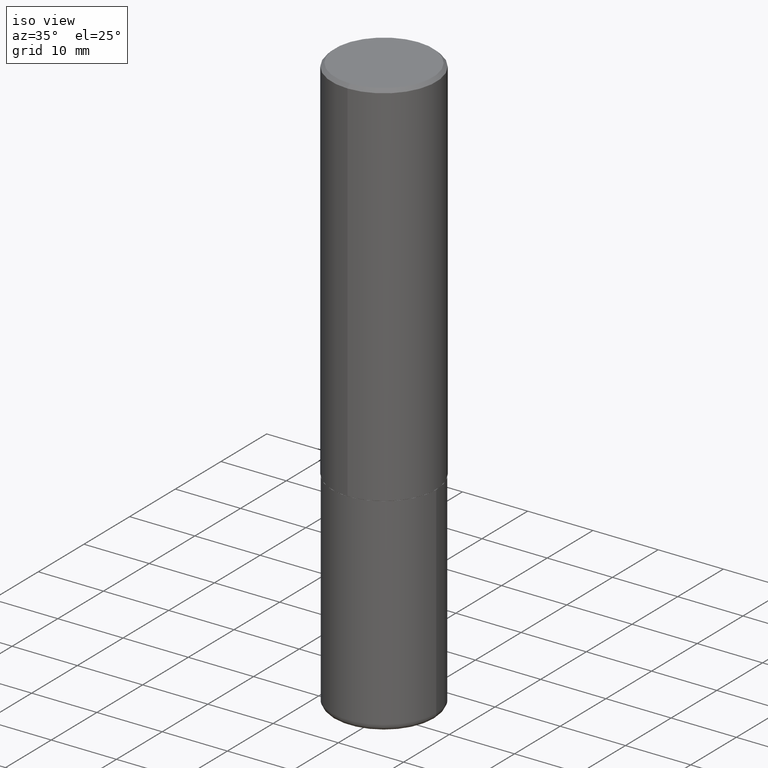
[diagram: clean part render]
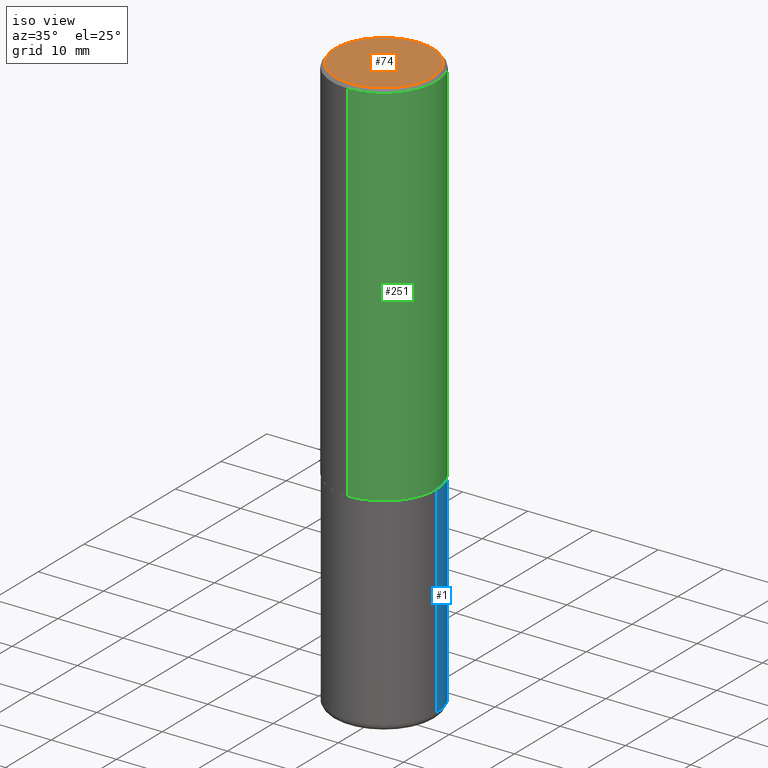
[diagram: same view with three faces highlighted in distinct colors, each labeled with its STEP entity id]
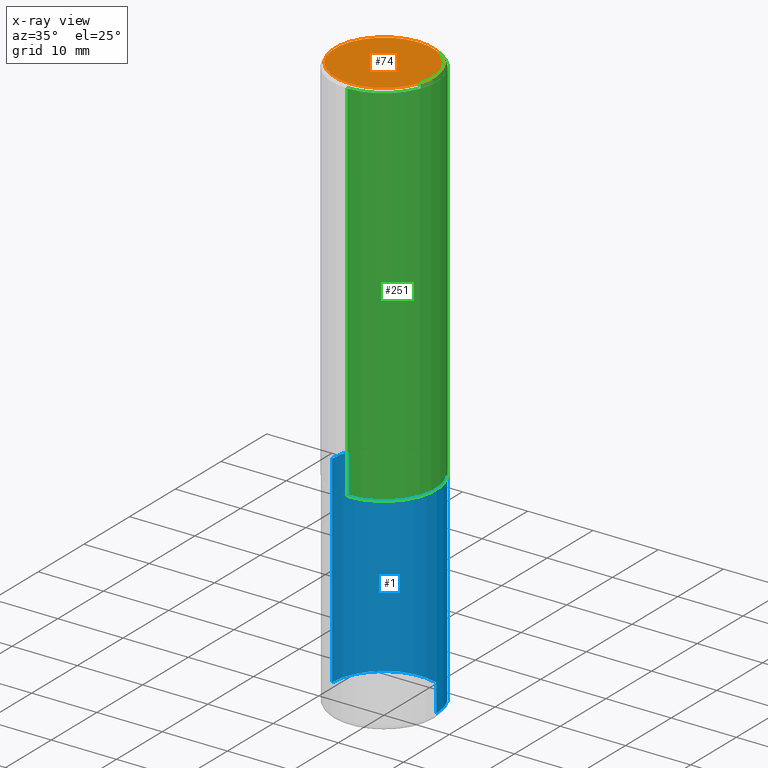
[diagram: x-ray of the same camera — body ghosted, the three highlighted faces saturated]
A machine part, iso view with three faces highlighted in distinct colors.
The next image is the same camera in x-ray (body ghosted, the three faces saturated) — at least one of them is partly hidden behind the body in this view.
Their STEP definitions:

[orange] entity #74 — the highlighted planar face has unit normal (0, -0, -1).
#5 = AXIS2_PLACEMENT_3D ( 'NONE', #55, #384, #23 ) ;
#21 = AXIS2_PLACEMENT_3D ( 'NONE', #409, #178, #242 ) ;
#23 = DIRECTION ( 'NONE',  ( -6.982962677686265922E-15, -1.000000000000000000, 3.490574506274840456E-15 ) ) ;
#30 = ORIENTED_EDGE ( 'NONE', *, *, #39, .T. ) ;
#39 = EDGE_CURVE ( 'NONE', #314, #397, #386, .T. ) ;
#55 = CARTESIAN_POINT ( 'NONE',  ( -6.780248536777034301E-45, 9.675378321561535985E-31, 2.771858415905051370E-16 ) ) ;
#74 = ADVANCED_FACE ( 'NONE', ( #81 ), #115, .F. ) ;
#81 = FACE_OUTER_BOUND ( 'NONE', #300, .T. ) ;
#85 = CIRCLE ( 'NONE', #5, 0.2949499999999996014 ) ;
#115 = PLANE ( 'NONE',  #21 ) ;
#178 = DIRECTION ( 'NONE',  ( 2.446102043983074868E-29, -3.490574506274840456E-15, -1.000000000000000000 ) ) ;
#183 = CARTESIAN_POINT ( 'NONE',  ( 2.129454468560424995E-15, 0.2949499999999996014, -7.523591090352575511E-16 ) ) ;
#187 = EDGE_CURVE ( 'NONE', #397, #314, #85, .T. ) ;
#207 = DIRECTION ( 'NONE',  ( -6.982962677686265922E-15, -1.000000000000000000, 3.490574506274840456E-15 ) ) ;
#213 = CARTESIAN_POINT ( 'NONE',  ( -6.780248536777034301E-45, 9.675378321561535985E-31, 2.771858415905051370E-16 ) ) ;
#242 = DIRECTION ( 'NONE',  ( 6.982962677686265922E-15, 1.000000000000000000, -3.490574506274840456E-15 ) ) ;
#275 = DIRECTION ( 'NONE',  ( -2.446102043983075148E-29, 3.490574506274840456E-15, 1.000000000000000000 ) ) ;
#296 = CARTESIAN_POINT ( 'NONE',  ( -2.092108864420426059E-15, -0.2949499999999996014, 1.306730792216267924E-15 ) ) ;
#300 = EDGE_LOOP ( 'NONE', ( #30, #415 ) ) ;
#314 = VERTEX_POINT ( 'NONE', #183 ) ;
#346 = AXIS2_PLACEMENT_3D ( 'NONE', #213, #275, #207 ) ;
#384 = DIRECTION ( 'NONE',  ( -2.446102043983075148E-29, 3.490574506274840456E-15, 1.000000000000000000 ) ) ;
#386 = CIRCLE ( 'NONE', #346, 0.2949499999999996014 ) ;
#397 = VERTEX_POINT ( 'NONE', #296 ) ;
#409 = CARTESIAN_POINT ( 'NONE',  ( 2.059624841783561302E-15, 0.2949499999999996014, -8.909520298305101196E-16 ) ) ;
#415 = ORIENTED_EDGE ( 'NONE', *, *, #187, .T. ) ;

[blue] entity #1 — the highlighted cylindrical surface (partial cylindrical patch) has radius 7.9997 mm, axis along (-0, 0, 1).
#1 = ADVANCED_FACE ( 'NONE', ( #273 ), #341, .T. ) ;
#2 = CARTESIAN_POINT ( 'NONE',  ( -0.3149500000000000077, -7.727880839183554507E-15, -2.244099999999999540 ) ) ;
#19 = EDGE_CURVE ( 'NONE', #197, #352, #405, .T. ) ;
#28 = EDGE_CURVE ( 'NONE', #244, #297, #83, .T. ) ;
#51 = DIRECTION ( 'NONE',  ( -2.445468806185136597E-29, 3.491481338843145583E-15, 1.000000000000000000 ) ) ;
#54 = AXIS2_PLACEMENT_3D ( 'NONE', #311, #188, #162 ) ;
#76 = DIRECTION ( 'NONE',  ( -2.445468806185136877E-29, 3.491481338843145188E-15, 1.000000000000000000 ) ) ;
#83 = LINE ( 'NONE', #145, #361 ) ;
#89 = CARTESIAN_POINT ( 'NONE',  ( -0.3149500000000000077, -9.858382752145642660E-15, -3.464500000000000135 ) ) ;
#100 = CARTESIAN_POINT ( 'NONE',  ( 0.3149500000000000077, -1.003451736783519063E-14, -2.244099999999999540 ) ) ;
#109 = AXIS2_PLACEMENT_3D ( 'NONE', #318, #417, #256 ) ;
#121 = ORIENTED_EDGE ( 'NONE', *, *, #19, .T. ) ;
#129 = ORIENTED_EDGE ( 'NONE', *, *, #182, .F. ) ;
#145 = CARTESIAN_POINT ( 'NONE',  ( 0.3149500000000000077, -2.199284095337289871E-15, 1.535751875536930130E-29 ) ) ;
#156 = VECTOR ( 'NONE', #398, 39.37007874015748143 ) ;
#162 = DIRECTION ( 'NONE',  ( 1.000000000000000000, -6.982962677686266711E-15, 0.000000000000000000 ) ) ;
#182 = EDGE_CURVE ( 'NONE', #297, #352, #247, .T. ) ;
#188 = DIRECTION ( 'NONE',  ( -2.445468806185136597E-29, 3.491481338843145583E-15, 1.000000000000000000 ) ) ;
#197 = VERTEX_POINT ( 'NONE', #89 ) ;
#198 = CIRCLE ( 'NONE', #109, 0.3149500000000000077 ) ;
#204 = AXIS2_PLACEMENT_3D ( 'NONE', #269, #51, #309 ) ;
#240 = EDGE_CURVE ( 'NONE', #244, #197, #198, .T. ) ;
#244 = VERTEX_POINT ( 'NONE', #253 ) ;
#247 = CIRCLE ( 'NONE', #54, 0.3149500000000000077 ) ;
#253 = CARTESIAN_POINT ( 'NONE',  ( 0.3149500000000000077, -1.429552119375937009E-14, -3.464500000000000135 ) ) ;
#256 = DIRECTION ( 'NONE',  ( 1.000000000000000000, -6.982962677686269866E-15, 0.000000000000000000 ) ) ;
#258 = ORIENTED_EDGE ( 'NONE', *, *, #28, .F. ) ;
#269 = CARTESIAN_POINT ( 'NONE',  ( 0.000000000000000000, 0.000000000000000000, 0.000000000000000000 ) ) ;
#273 = FACE_OUTER_BOUND ( 'NONE', #394, .T. ) ;
#297 = VERTEX_POINT ( 'NONE', #100 ) ;
#309 = DIRECTION ( 'NONE',  ( 1.000000000000000000, -6.982962677686266711E-15, 4.876176775795936353E-29 ) ) ;
#311 = CARTESIAN_POINT ( 'NONE',  ( 5.487876547960064752E-29, -7.835233272497900762E-15, -2.244099999999999540 ) ) ;
#318 = CARTESIAN_POINT ( 'NONE',  ( 8.472326679028406000E-29, -1.209623709842207864E-14, -3.464500000000000135 ) ) ;
#341 = CYLINDRICAL_SURFACE ( 'NONE', #204, 0.3149500000000000077 ) ;
#345 = ORIENTED_EDGE ( 'NONE', *, *, #240, .T. ) ;
#352 = VERTEX_POINT ( 'NONE', #2 ) ;
#361 = VECTOR ( 'NONE', #76, 39.37007874015748143 ) ;
#373 = CARTESIAN_POINT ( 'NONE',  ( -0.3149500000000000077, 2.237854346276435590E-15, -1.549218606675782676E-29 ) ) ;
#394 = EDGE_LOOP ( 'NONE', ( #345, #121, #129, #258 ) ) ;
#398 = DIRECTION ( 'NONE',  ( -2.445468806185136877E-29, 3.491481338843145188E-15, 1.000000000000000000 ) ) ;
#405 = LINE ( 'NONE', #373, #156 ) ;
#417 = DIRECTION ( 'NONE',  ( -2.445468806185136597E-29, 3.491481338843145583E-15, 1.000000000000000000 ) ) ;

[green] entity #251 — the highlighted cylindrical surface (partial cylindrical patch) has radius 7.9997 mm, axis along (-0, 0, 1).
#3 = DIRECTION ( 'NONE',  ( -6.982962677686264344E-15, -1.000000000000000000, 3.496670018878890283E-15 ) ) ;
#24 = CARTESIAN_POINT ( 'NONE',  ( 0.000000000000000000, 0.000000000000000000, 0.000000000000000000 ) ) ;
#32 = DIRECTION ( 'NONE',  ( -2.446102043983075148E-29, 3.490574506274840456E-15, 1.000000000000000000 ) ) ;
#52 = CARTESIAN_POINT ( 'NONE',  ( -2.160713844398142179E-15, -0.3149499999999999522, -0.01999999999999896652 ) ) ;
#57 = CARTESIAN_POINT ( 'NONE',  ( 2.237854346276435590E-15, 0.3149500000000000632, -1.099356440751261260E-15 ) ) ;
#61 = AXIS2_PLACEMENT_3D ( 'NONE', #124, #92, #382 ) ;
#92 = DIRECTION ( 'NONE',  ( -2.446102043983075148E-29, 3.490574506274840456E-15, 1.000000000000000000 ) ) ;
#97 = VERTEX_POINT ( 'NONE', #371 ) ;
#108 = CARTESIAN_POINT ( 'NONE',  ( 4.892204087966167602E-31, -6.981149012549705614E-17, -0.02000000000000006981 ) ) ;
#110 = ORIENTED_EDGE ( 'NONE', *, *, #173, .T. ) ;
#124 = CARTESIAN_POINT ( 'NONE',  ( 5.486851494858434265E-29, -7.829707675025093274E-15, -2.243099999999999206 ) ) ;
#128 = CARTESIAN_POINT ( 'NONE',  ( 2.199284095337288688E-15, 0.3149499999999997857, -0.02000000000000116962 ) ) ;
#155 = DIRECTION ( 'NONE',  ( -2.446102043983075148E-29, 3.490574506274840456E-15, 1.000000000000000000 ) ) ;
#173 = EDGE_CURVE ( 'NONE', #360, #272, #268, .T. ) ;
#176 = EDGE_CURVE ( 'NONE', #97, #360, #230, .T. ) ;
#184 = DIRECTION ( 'NONE',  ( -2.446102043983075148E-29, 3.490574506274840456E-15, 1.000000000000000000 ) ) ;
#217 = LINE ( 'NONE', #377, #255 ) ;
#230 = CIRCLE ( 'NONE', #61, 0.3149500000000002853 ) ;
#250 = CYLINDRICAL_SURFACE ( 'NONE', #349, 0.3149500000000000632 ) ;
#251 = ADVANCED_FACE ( 'NONE', ( #383 ), #250, .T. ) ;
#255 = VECTOR ( 'NONE', #184, 39.37007874015748143 ) ;
#268 = LINE ( 'NONE', #57, #380 ) ;
#272 = VERTEX_POINT ( 'NONE', #128 ) ;
#277 = DIRECTION ( 'NONE',  ( -6.982962677686265922E-15, -1.000000000000000000, 3.490574506274840456E-15 ) ) ;
#285 = VERTEX_POINT ( 'NONE', #52 ) ;
#287 = EDGE_CURVE ( 'NONE', #97, #285, #217, .T. ) ;
#289 = ORIENTED_EDGE ( 'NONE', *, *, #315, .F. ) ;
#294 = EDGE_LOOP ( 'NONE', ( #406, #110, #289, #319 ) ) ;
#315 = EDGE_CURVE ( 'NONE', #285, #272, #401, .T. ) ;
#319 = ORIENTED_EDGE ( 'NONE', *, *, #287, .F. ) ;
#349 = AXIS2_PLACEMENT_3D ( 'NONE', #24, #379, #277 ) ;
#360 = VERTEX_POINT ( 'NONE', #385 ) ;
#371 = CARTESIAN_POINT ( 'NONE',  ( -2.199284095337236228E-15, -0.3149500000000081124, -2.243099999999998317 ) ) ;
#377 = CARTESIAN_POINT ( 'NONE',  ( -2.199284095337289871E-15, -0.3149500000000000632, 1.099356440751261260E-15 ) ) ;
#379 = DIRECTION ( 'NONE',  ( -2.446102043983075148E-29, 3.490574506274840456E-15, 1.000000000000000000 ) ) ;
#380 = VECTOR ( 'NONE', #155, 39.37007874015748143 ) ;
#382 = DIRECTION ( 'NONE',  ( -6.982962677686265922E-15, -1.000000000000000000, 3.469564049740290009E-15 ) ) ;
#383 = FACE_OUTER_BOUND ( 'NONE', #294, .T. ) ;
#385 = CARTESIAN_POINT ( 'NONE',  ( 2.237854346276463595E-15, 0.3149499999999924027, -2.243100000000000538 ) ) ;
#401 = CIRCLE ( 'NONE', #402, 0.3149499999999998967 ) ;
#402 = AXIS2_PLACEMENT_3D ( 'NONE', #108, #32, #3 ) ;
#406 = ORIENTED_EDGE ( 'NONE', *, *, #176, .T. ) ;